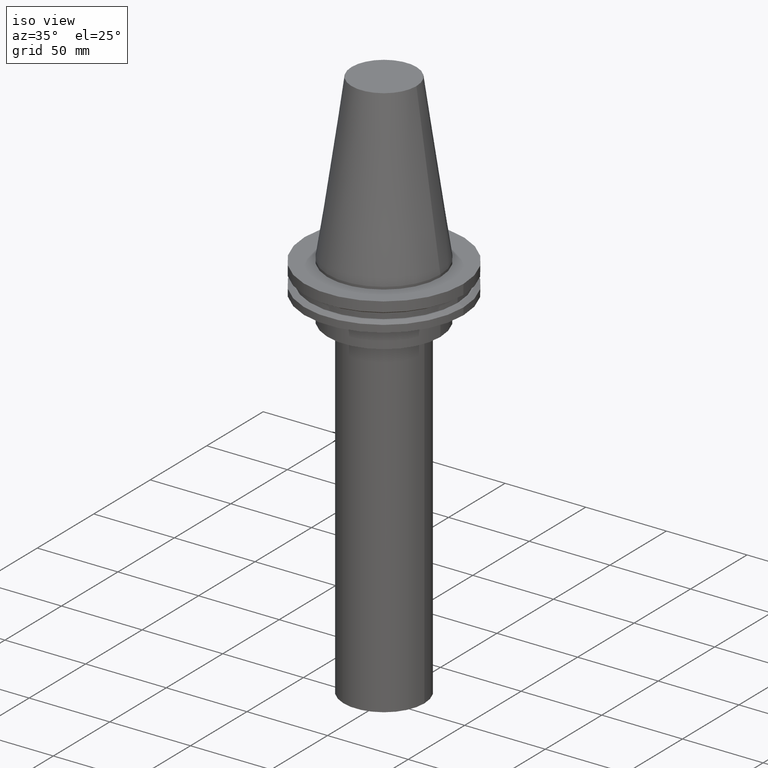
[diagram: clean part render]
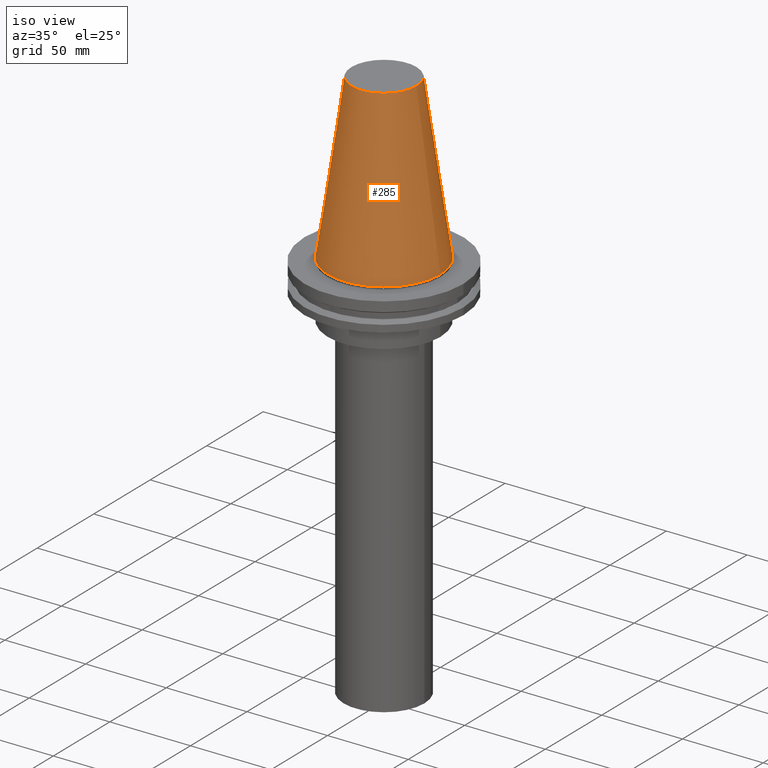
[diagram: same view with one face highlighted and labeled with its STEP entity id]
A machine part, iso view. The second image highlights one B-rep face of the part: STEP entity #285.
In plain terms, the highlighted conical surface has half-angle 8.297 deg.
Its self-contained STEP definition (entity closure, byte-faithful):
#23 = CONICAL_SURFACE ( 'NONE', #240, 34.92499999999999005, 0.1448138465474119452 ) ;
#26 = CARTESIAN_POINT ( 'NONE',  ( 34.92499999999999005, 0.000000000000000000, 0.000000000000000000 ) ) ;
#27 = DIRECTION ( 'NONE',  ( -1.000000000000000000, 0.000000000000000000, 0.000000000000000000 ) ) ;
#53 = DIRECTION ( 'NONE',  ( 0.000000000000000000, 0.000000000000000000, -1.000000000000000000 ) ) ;
#109 = CARTESIAN_POINT ( 'NONE',  ( 0.000000000000000000, 0.000000000000000000, 101.5999999999999801 ) ) ;
#117 = AXIS2_PLACEMENT_3D ( 'NONE', #237, #171, #325 ) ;
#125 = EDGE_LOOP ( 'NONE', ( #161 ) ) ;
#126 = EDGE_CURVE ( 'NONE', #182, #182, #371, .T. ) ;
#160 = FACE_BOUND ( 'NONE', #125, .T. ) ;
#161 = ORIENTED_EDGE ( 'NONE', *, *, #197, .F. ) ;
#171 = DIRECTION ( 'NONE',  ( -0.000000000000000000, -0.000000000000000000, 1.000000000000000000 ) ) ;
#182 = VERTEX_POINT ( 'NONE', #26 ) ;
#197 = EDGE_CURVE ( 'NONE', #368, #368, #329, .T. ) ;
#217 = CARTESIAN_POINT ( 'NONE',  ( 20.10819343178871321, 0.000000000000000000, 101.5999999999999801 ) ) ;
#232 = DIRECTION ( 'NONE',  ( -0.000000000000000000, -0.000000000000000000, 1.000000000000000000 ) ) ;
#237 = CARTESIAN_POINT ( 'NONE',  ( 0.000000000000000000, 0.000000000000000000, 0.000000000000000000 ) ) ;
#240 = AXIS2_PLACEMENT_3D ( 'NONE', #330, #53, #27 ) ;
#284 = ORIENTED_EDGE ( 'NONE', *, *, #126, .T. ) ;
#285 = ADVANCED_FACE ( 'NONE', ( #160, #363 ), #23, .T. ) ;
#325 = DIRECTION ( 'NONE',  ( 1.000000000000000000, 0.000000000000000000, 0.000000000000000000 ) ) ;
#329 = CIRCLE ( 'NONE', #358, 20.10819343178871321 ) ;
#330 = CARTESIAN_POINT ( 'NONE',  ( 0.000000000000000000, 0.000000000000000000, 0.000000000000000000 ) ) ;
#347 = EDGE_LOOP ( 'NONE', ( #284 ) ) ;
#349 = DIRECTION ( 'NONE',  ( 1.000000000000000000, 0.000000000000000000, 0.000000000000000000 ) ) ;
#358 = AXIS2_PLACEMENT_3D ( 'NONE', #109, #232, #349 ) ;
#363 = FACE_OUTER_BOUND ( 'NONE', #347, .T. ) ;
#368 = VERTEX_POINT ( 'NONE', #217 ) ;
#371 = CIRCLE ( 'NONE', #117, 34.92499999999999005 ) ;